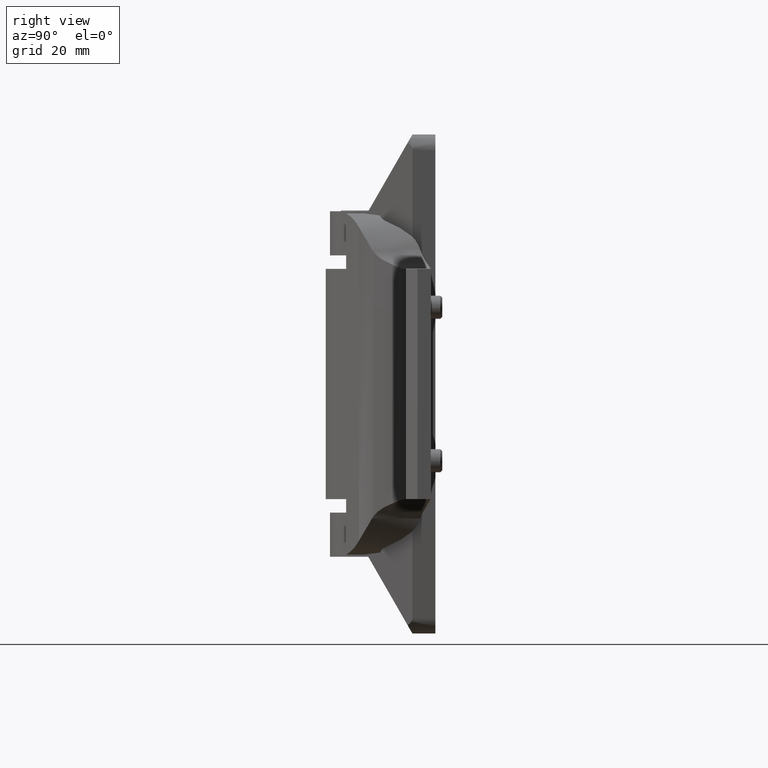
[diagram: clean part render]
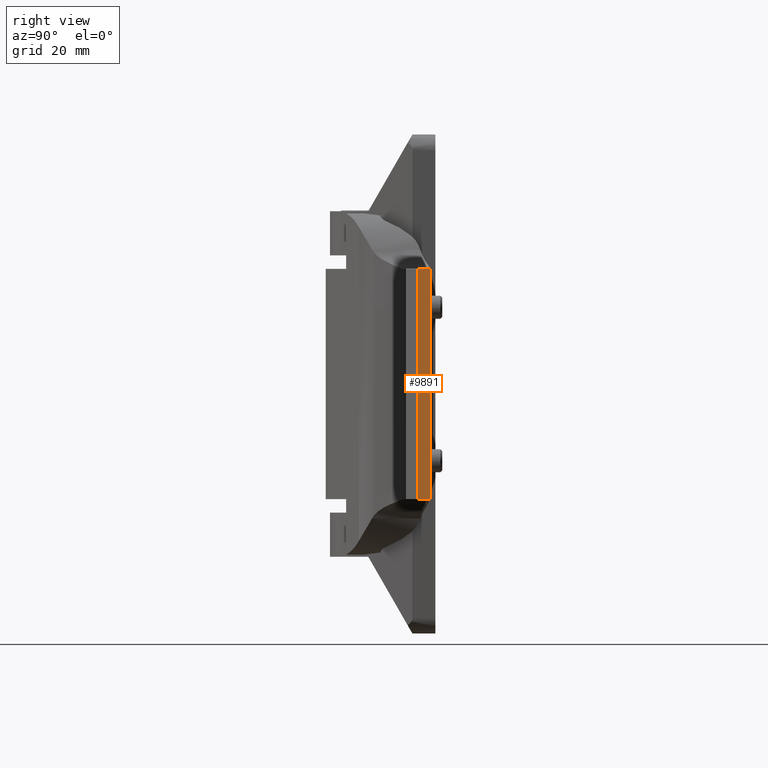
[diagram: same view with one face highlighted and labeled with its STEP entity id]
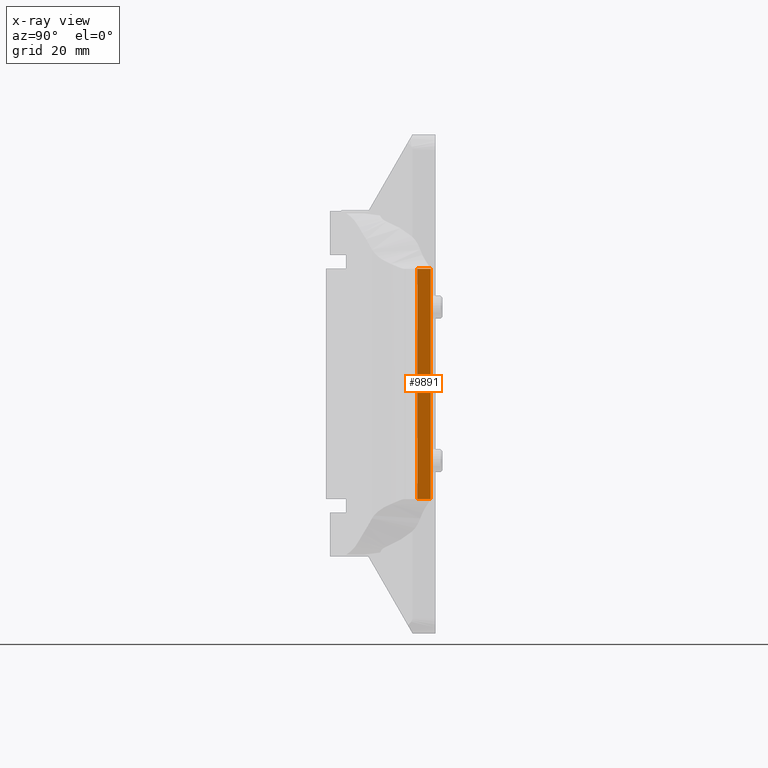
[diagram: x-ray of the same camera — body ghosted, the highlighted face saturated]
A machine part, right view. The second image highlights one B-rep face of the part: STEP entity #9891.
The next image is the same camera in x-ray: the body ghosted, the highlighted face saturated — about 0% of this face is hidden behind the body in this view.
In plain terms, the highlighted face is a freeform B-spline surface patch.
Its self-contained STEP definition (entity closure, byte-faithful):
#9453=CARTESIAN_POINT('',(121.000005595014600,12.800000664952901,29.999985920499700));
#9454=VERTEX_POINT('',#9453);
#9460=CARTESIAN_POINT('',(121.000005595014600,16.300000831205349,29.999985920499700));
#9461=VERTEX_POINT('',#9460);
#9462=CARTESIAN_POINT('',(121.000005595014600,12.800000664952901,29.999985920499700));
#9463=CARTESIAN_POINT('',(121.000005595014600,16.300000831205349,29.999985920499700));
#9464=QUASI_UNIFORM_CURVE('',1,(#9462,#9463),.UNSPECIFIED.,.F.,.U.);
#9465=EDGE_CURVE('',#9454,#9461,#9464,.T.);
#9720=CARTESIAN_POINT('',(121.000005595014800,16.300000831205349,-30.000016929343548));
#9721=VERTEX_POINT('',#9720);
#9727=CARTESIAN_POINT('',(121.000005595014800,12.800000664952901,-30.000016929343548));
#9728=VERTEX_POINT('',#9727);
#9729=CARTESIAN_POINT('',(121.000005595014800,12.800000664952901,-30.000016929343548));
#9730=CARTESIAN_POINT('',(121.000005595014800,16.300000831205349,-30.000016929343548));
#9731=QUASI_UNIFORM_CURVE('',1,(#9729,#9730),.UNSPECIFIED.,.F.,.U.);
#9732=EDGE_CURVE('',#9728,#9721,#9731,.T.);
#9872=CARTESIAN_POINT('',(121.000005595014800,16.474826186289871,32.996987073031917));
#9873=CARTESIAN_POINT('',(121.000005595014800,16.474826186289871,-32.997018618317597));
#9874=CARTESIAN_POINT('',(121.000005595014800,12.625175028236420,32.996987073031917));
#9875=CARTESIAN_POINT('',(121.000005595014800,12.625175028236420,-32.997018618317597));
#9876=B_SPLINE_SURFACE_WITH_KNOTS('',1,1,((#9872,#9874),(#9873,#9875)),.UNSPECIFIED.,.F.,.F.,.U.,(2,2),(2,2),(0.0,65.994005691349514),(0.0,3.849651158053456),.UNSPECIFIED.);
#9877=CARTESIAN_POINT('',(121.000005595014600,12.800000664952901,29.999985920499700));
#9878=CARTESIAN_POINT('',(121.000005595014800,12.800000664952901,-30.000016929343548));
#9879=QUASI_UNIFORM_CURVE('',1,(#9877,#9878),.UNSPECIFIED.,.F.,.U.);
#9880=EDGE_CURVE('',#9454,#9728,#9879,.T.);
#9881=ORIENTED_EDGE('',*,*,#9880,.T.);
#9882=ORIENTED_EDGE('',*,*,#9732,.T.);
#9883=CARTESIAN_POINT('',(121.000005595014600,16.300000831205349,29.999985920499700));
#9884=CARTESIAN_POINT('',(121.000005595014800,16.300000831205349,-30.000016929343548));
#9885=QUASI_UNIFORM_CURVE('',1,(#9883,#9884),.UNSPECIFIED.,.F.,.U.);
#9886=EDGE_CURVE('',#9461,#9721,#9885,.T.);
#9887=ORIENTED_EDGE('',*,*,#9886,.F.);
#9888=ORIENTED_EDGE('',*,*,#9465,.F.);
#9889=EDGE_LOOP('',(#9881,#9882,#9887,#9888));
#9890=FACE_OUTER_BOUND('',#9889,.T.);
#9891=ADVANCED_FACE('',(#9890),#9876,.F.);